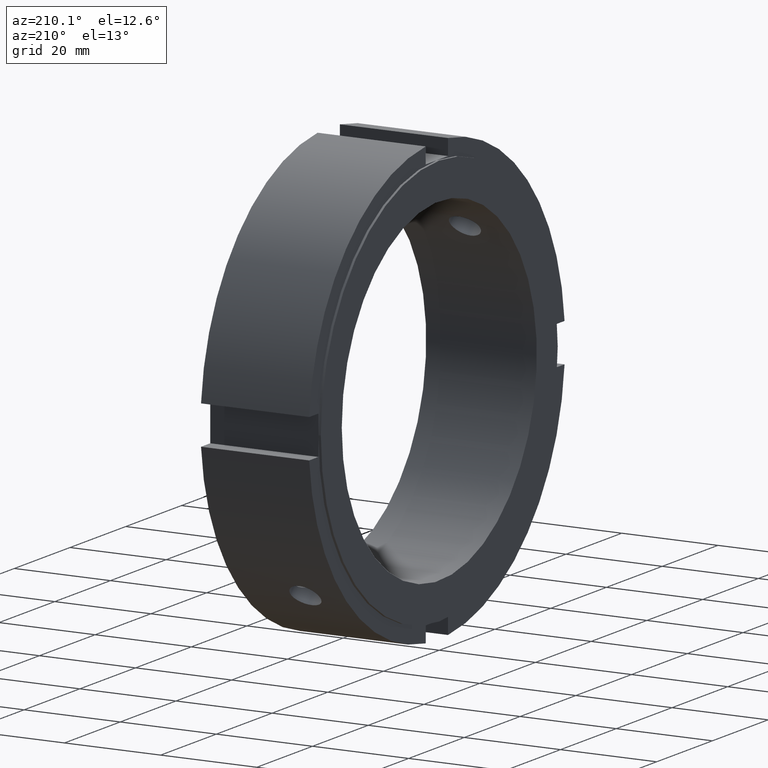
[diagram: clean part render]
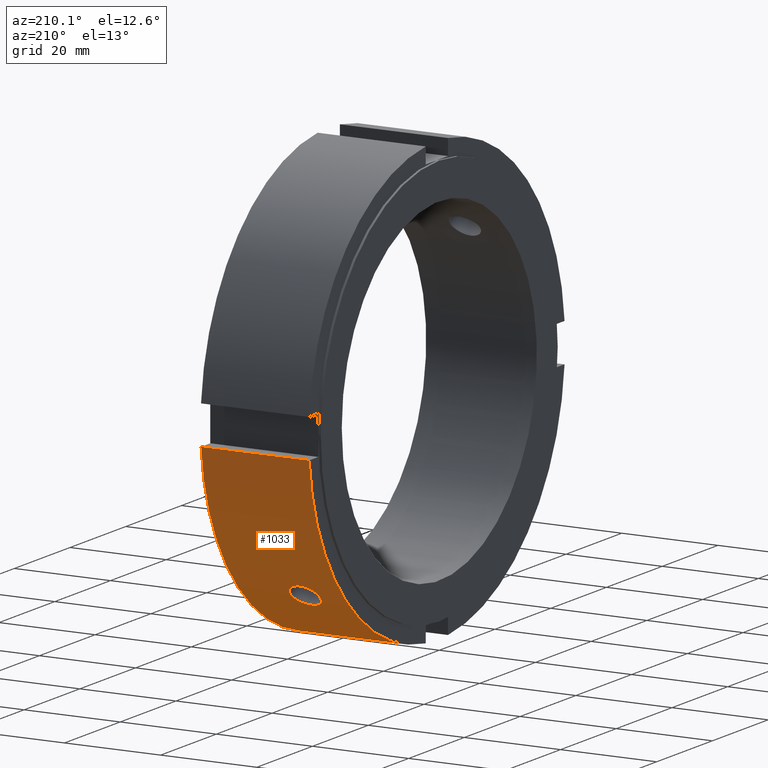
[diagram: same view with one face highlighted and labeled with its STEP entity id]
A machine part, auxiliary view. The second image highlights one B-rep face of the part: STEP entity #1033.
In plain terms, the highlighted cylindrical surface (partial cylindrical patch) has radius 46 mm, axis along (1, 0, 0).
Its self-contained STEP definition (entity closure, byte-faithful):
#439=CARTESIAN_POINT('',(8.999999999999988,30.260934944470314,-34.644996987826914));
#440=VERTEX_POINT('',#439);
#441=CARTESIAN_POINT('',(8.999999999999989,30.260934944470307,-34.644996987826914));
#442=CARTESIAN_POINT('',(9.389369659459456,30.260934944470307,-34.644996987826914));
#443=CARTESIAN_POINT('',(9.804611949103807,30.319840368114473,-34.593820332374172));
#444=CARTESIAN_POINT('',(10.568352914941306,30.557527640555268,-34.384046149106652));
#445=CARTESIAN_POINT('',(10.916861619357467,30.736103279460178,-34.225251580172369));
#446=CARTESIAN_POINT('',(11.467200231800149,31.143816553478779,-33.854668524576937));
#447=CARTESIAN_POINT('',(11.705757141000738,31.400130209370239,-33.618116322715522));
#448=CARTESIAN_POINT('',(12.022160287955179,31.954110933131481,-33.092003818517483));
#449=CARTESIAN_POINT('',(12.099999999999991,32.251586200297382,-32.802237668864997));
#450=CARTESIAN_POINT('',(12.099999999999987,32.802237668864997,-32.251586200297389));
#451=CARTESIAN_POINT('',(12.022160287955177,33.092003818517476,-31.954110933131489));
#452=CARTESIAN_POINT('',(11.705757141000735,33.618116322715515,-31.400130209370243));
#453=CARTESIAN_POINT('',(11.467200231800149,33.85466852457693,-31.143816553478779));
#454=CARTESIAN_POINT('',(10.916861619357467,34.225251580172369,-30.736103279460181));
#455=CARTESIAN_POINT('',(10.568352914941304,34.384046149106638,-30.557527640555271));
#456=CARTESIAN_POINT('',(9.804611949103805,34.593820332374165,-30.31984036811448));
#457=CARTESIAN_POINT('',(9.389369659459456,34.644996987826914,-30.260934944470318));
#458=CARTESIAN_POINT('',(8.610630340540521,34.644996987826914,-30.260934944470318));
#459=CARTESIAN_POINT('',(8.195388050896174,34.593820332374165,-30.31984036811448));
#460=CARTESIAN_POINT('',(7.431647085058674,34.384046149106645,-30.557527640555268));
#461=CARTESIAN_POINT('',(7.083138380642509,34.225251580172369,-30.736103279460181));
#462=CARTESIAN_POINT('',(6.532799768199825,33.85466852457693,-31.143816553478779));
#463=CARTESIAN_POINT('',(6.294242858999239,33.618116322715515,-31.400130209370246));
#464=CARTESIAN_POINT('',(5.977839712044798,33.092003818517483,-31.954110933131489));
#465=CARTESIAN_POINT('',(5.899999999999988,32.802237668864997,-32.251586200297389));
#466=CARTESIAN_POINT('',(5.899999999999988,32.251586200297382,-32.802237668864997));
#467=CARTESIAN_POINT('',(5.977839712044794,31.954110933131492,-33.092003818517483));
#468=CARTESIAN_POINT('',(6.294242858999234,31.400130209370246,-33.618116322715522));
#469=CARTESIAN_POINT('',(6.532799768199824,31.143816553478779,-33.854668524576937));
#470=CARTESIAN_POINT('',(7.083138380642509,30.736103279460178,-34.225251580172369));
#471=CARTESIAN_POINT('',(7.431647085058669,30.557527640555268,-34.384046149106652));
#472=CARTESIAN_POINT('',(8.19538805089617,30.319840368114473,-34.593820332374172));
#473=CARTESIAN_POINT('',(8.610630340540521,30.260934944470307,-34.644996987826914));
#474=CARTESIAN_POINT('',(8.999999999999989,30.260934944470307,-34.644996987826914));
#475=B_SPLINE_CURVE_WITH_KNOTS('',3,(#441,#442,#443,#444,#445,#446,#447,#448,#449,#450,#451,#452,#453,#454,#455,#456,#457,#458,#459,#460,#461,#462,#463,#464,#465,#466,#467,#468,#469,#470,#471,#472,#473,#474),.UNSPECIFIED.,.T.,.U.,(4,2,2,2,2,2,2,2,2,2,2,2,2,2,2,2,4),(0.0,0.11681089783784,0.233621795675681,0.350432611924027,0.467243428172374,0.58405424442072,0.700865060669066,0.817675958506907,0.934486856344747,1.051297754182587,1.168108652020428,1.284919468268774,1.401730284517121,1.518541100765467,1.635351917013813,1.752162814851654,1.868973712689494),.UNSPECIFIED.);
#476=EDGE_CURVE('',#440,#440,#475,.T.);
#573=CARTESIAN_POINT('',(0.499999999999989,3.99999999999999,-45.825756949558411));
#574=VERTEX_POINT('',#573);
#583=CARTESIAN_POINT('',(22.999999999999989,3.99999999999999,-45.825756949558411));
#584=VERTEX_POINT('',#583);
#585=CARTESIAN_POINT('',(22.999999999999989,3.99999999999999,-45.825756949558411));
#586=DIRECTION('',(-1.0,0.0,0.0));
#587=VECTOR('',#586,22.5);
#588=LINE('',#585,#587);
#589=EDGE_CURVE('',#584,#574,#588,.T.);
#998=CARTESIAN_POINT('',(11.749999999999989,0.0,0.0));
#999=DIRECTION('',(1.0,0.0,0.0));
#1000=DIRECTION('',(0.0,1.0,0.0));
#1001=AXIS2_PLACEMENT_3D('',#998,#999,#1000);
#1002=CYLINDRICAL_SURFACE('',#1001,46.000000000000007);
#1003=ORIENTED_EDGE('',*,*,#589,.T.);
#1004=CARTESIAN_POINT('',(0.499999999999989,45.825756949558411,-3.999999999999998));
#1005=VERTEX_POINT('',#1004);
#1006=CARTESIAN_POINT('',(0.499999999999989,0.0,0.0));
#1007=DIRECTION('',(1.0,0.0,0.0));
#1008=DIRECTION('',(0.0,1.0,0.0));
#1009=AXIS2_PLACEMENT_3D('',#1006,#1007,#1008);
#1010=CIRCLE('',#1009,46.000000000000007);
#1011=EDGE_CURVE('',#574,#1005,#1010,.T.);
#1012=ORIENTED_EDGE('',*,*,#1011,.T.);
#1013=CARTESIAN_POINT('',(22.999999999999989,45.825756949558411,-3.999999999999998));
#1014=VERTEX_POINT('',#1013);
#1015=CARTESIAN_POINT('',(0.499999999999989,45.825756949558411,-3.999999999999998));
#1016=DIRECTION('',(1.0,0.0,0.0));
#1017=VECTOR('',#1016,22.5);
#1018=LINE('',#1015,#1017);
#1019=EDGE_CURVE('',#1005,#1014,#1018,.T.);
#1020=ORIENTED_EDGE('',*,*,#1019,.T.);
#1021=CARTESIAN_POINT('',(22.999999999999989,0.0,0.0));
#1022=DIRECTION('',(1.0,0.0,0.0));
#1023=DIRECTION('',(0.0,1.0,0.0));
#1024=AXIS2_PLACEMENT_3D('',#1021,#1022,#1023);
#1025=CIRCLE('',#1024,46.000000000000007);
#1026=EDGE_CURVE('',#584,#1014,#1025,.T.);
#1027=ORIENTED_EDGE('',*,*,#1026,.F.);
#1028=EDGE_LOOP('',(#1003,#1012,#1020,#1027));
#1029=FACE_OUTER_BOUND('',#1028,.T.);
#1030=ORIENTED_EDGE('',*,*,#476,.T.);
#1031=EDGE_LOOP('',(#1030));
#1032=FACE_BOUND('',#1031,.T.);
#1033=ADVANCED_FACE('',(#1029,#1032),#1002,.T.);